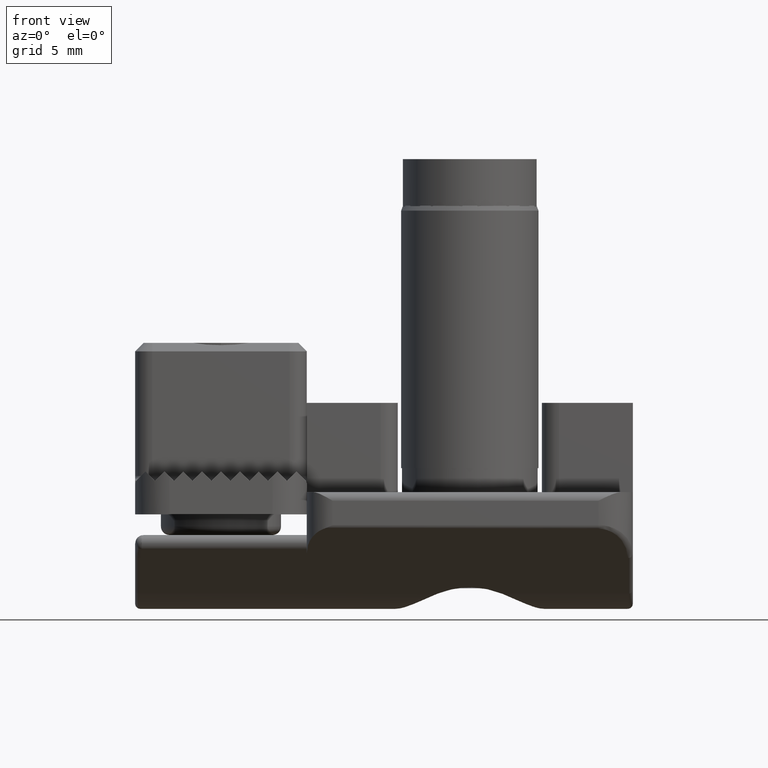
[diagram: clean part render]
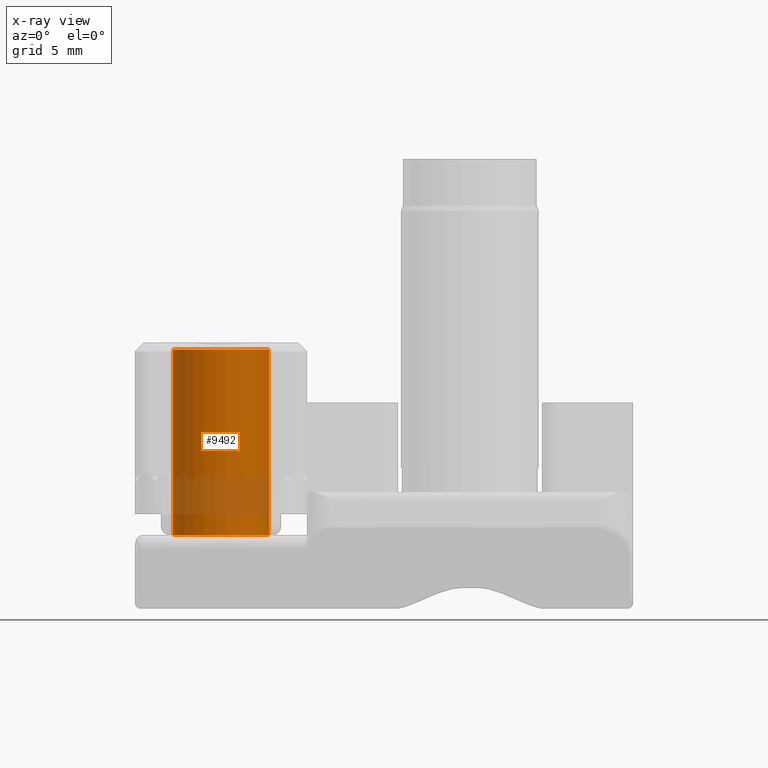
[diagram: x-ray — body ghosted, one internal face saturated and labeled with its STEP entity id]
A machine part, front view, then the same camera in x-ray: the body is ghosted and one INTERNAL B-rep face — a face not visible from any outside direction — is saturated and labeled: STEP entity #9492.
In plain terms, the highlighted cylindrical surface (partial cylindrical patch) has radius 2.8 mm, axis along (0, 0, -1).
Its self-contained STEP definition (entity closure, byte-faithful):
#9423=CARTESIAN_POINT('',(0.E0,0.E0,1.480414518843E1));
#9424=DIRECTION('',(0.E0,0.E0,1.E0));
#9425=DIRECTION('',(-1.E0,0.E0,0.E0));
#9426=AXIS2_PLACEMENT_3D('',#9423,#9424,#9425);
#9431=DIRECTION('',(0.E0,0.E0,-1.E0));
#9432=VECTOR('',#9431,1.080414518843E1);
#9433=CARTESIAN_POINT('',(2.8E0,0.E0,1.480414518843E1));
#9434=LINE('',#9433,#9432);
#9438=CARTESIAN_POINT('',(0.E0,0.E0,4.E0));
#9439=DIRECTION('',(0.E0,0.E0,-1.E0));
#9440=DIRECTION('',(1.E0,0.E0,0.E0));
#9441=AXIS2_PLACEMENT_3D('',#9438,#9439,#9440);
#9446=DIRECTION('',(0.E0,0.E0,-1.E0));
#9447=VECTOR('',#9446,1.080414518843E1);
#9448=CARTESIAN_POINT('',(-2.8E0,0.E0,1.480414518843E1));
#9449=LINE('',#9448,#9447);
#9469=CARTESIAN_POINT('',(-2.8E0,0.E0,4.E0));
#9470=CARTESIAN_POINT('',(2.8E0,0.E0,4.E0));
#9471=VERTEX_POINT('',#9469);
#9472=VERTEX_POINT('',#9470);
#9473=CARTESIAN_POINT('',(-2.8E0,0.E0,1.480414518843E1));
#9474=VERTEX_POINT('',#9473);
#9475=CARTESIAN_POINT('',(2.8E0,0.E0,1.480414518843E1));
#9476=VERTEX_POINT('',#9475);
#9477=CARTESIAN_POINT('',(0.E0,0.E0,1.65E1));
#9478=DIRECTION('',(0.E0,0.E0,-1.E0));
#9479=DIRECTION('',(-1.E0,0.E0,0.E0));
#9480=AXIS2_PLACEMENT_3D('',#9477,#9478,#9479);
#9481=CYLINDRICAL_SURFACE('',#9480,2.8E0);
#9483=ORIENTED_EDGE('',*,*,#9482,.F.);
#9485=ORIENTED_EDGE('',*,*,#9484,.T.);
#9487=ORIENTED_EDGE('',*,*,#9486,.T.);
#9489=ORIENTED_EDGE('',*,*,#9488,.T.);
#9490=EDGE_LOOP('',(#9483,#9485,#9487,#9489));
#9491=FACE_OUTER_BOUND('',#9490,.F.);
#9492=ADVANCED_FACE('',(#9491),#9481,.T.);
#9427=CIRCLE('',#9426,2.8E0);
#9442=CIRCLE('',#9441,2.8E0);
#9482=EDGE_CURVE('',#9474,#9471,#9449,.T.);
#9484=EDGE_CURVE('',#9474,#9476,#9427,.T.);
#9486=EDGE_CURVE('',#9476,#9472,#9434,.T.);
#9488=EDGE_CURVE('',#9472,#9471,#9442,.T.);